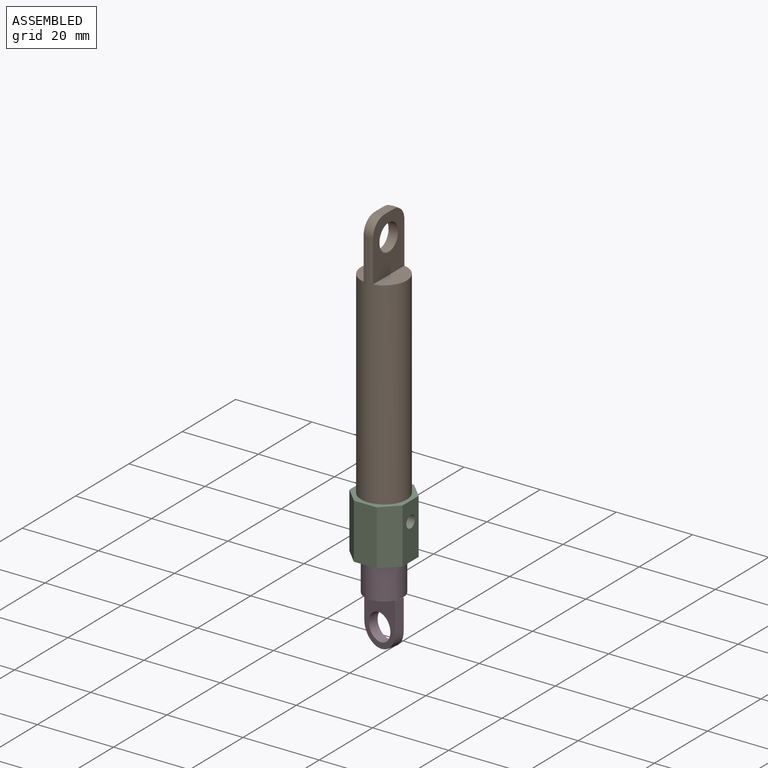
[diagram: assembled view]
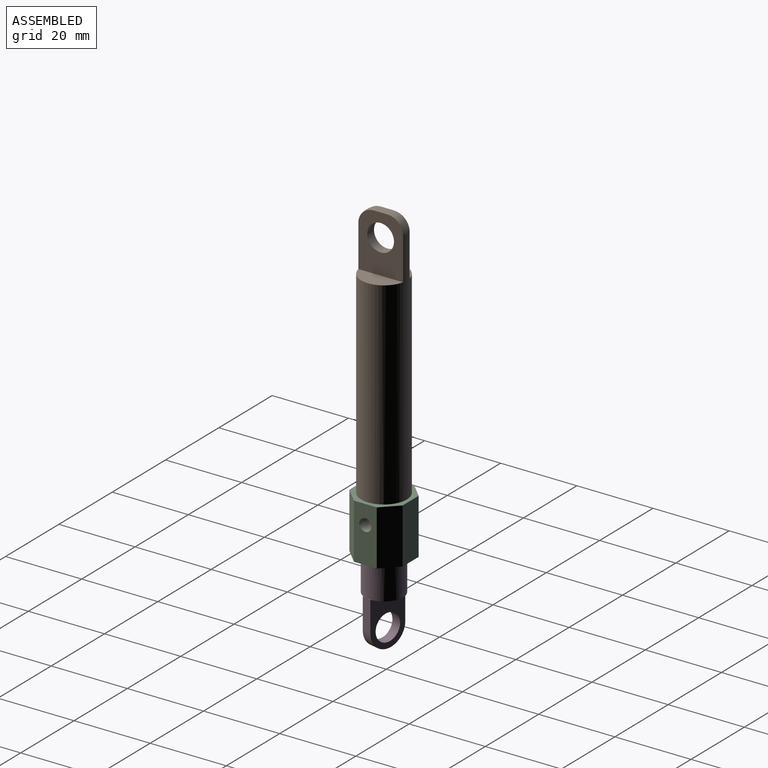
[diagram: assembled view, second angle]
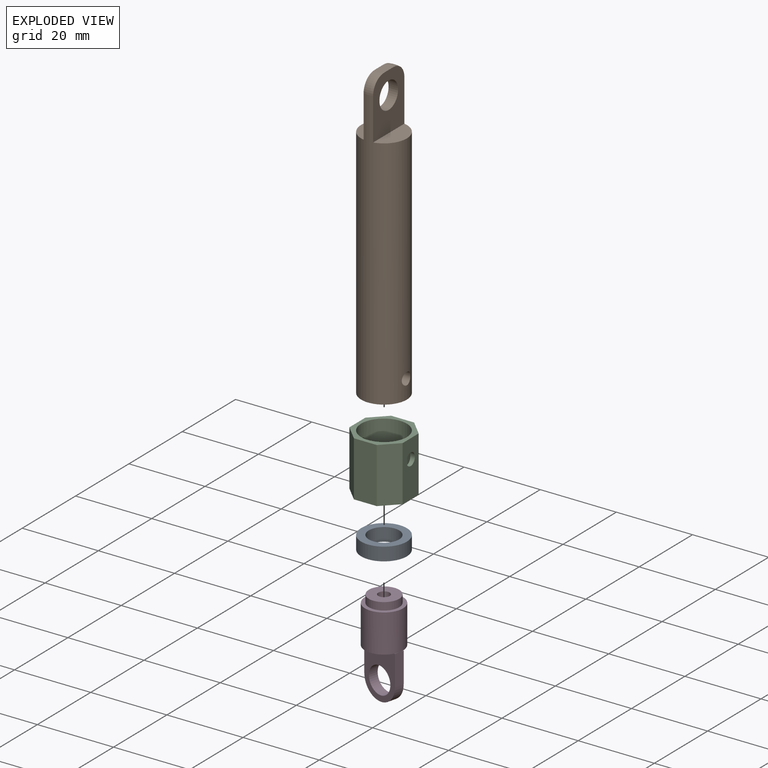
[diagram: exploded view]
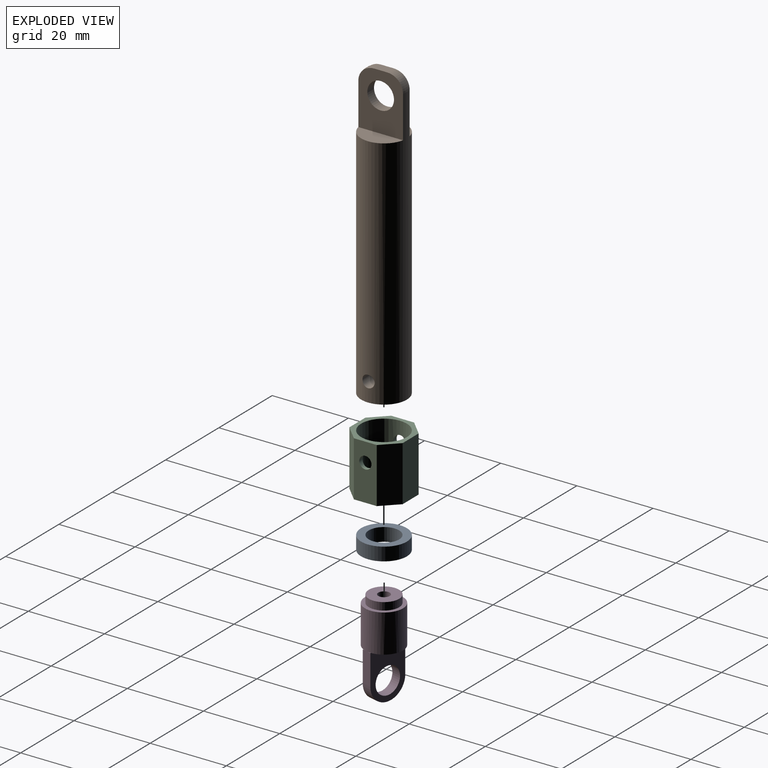
[diagram: exploded view, second angle]
ASSEMBLY  parts=4 mates=3
PART A: 4 faces, bbox 12x12x3.5 mm
  f0: cylinder r=4mm len=8mm, axis (0,0,-1), area 88mm2, adj f2,f3
  f1: cylinder r=6mm len=12mm, axis (0,0,-1), area 131.9mm2, adj f2,f3
  f2: plane 12x12mm, normal (0,0,1), area 62.8mm2, adj f0,f1
  f3: plane 12x12mm, normal (0,0,-1), area 62.8mm2, adj f0,f1
PART B: 16 faces, bbox 12x12x77 mm
  f0: cylinder r=6mm len=73mm, axis (0,0,1), area 2376.5mm2, adj f3,f7,f8,f9,f10,f11,f12,f13
  f1: plane 4x2.5mm, normal (0,0,1), area 9.3mm2, adj f10,f12,f13,f14
  f2: cylinder r=2mm len=50mm, axis (0,0,1), area 610.5mm2, adj f5,f6,f7,f8
  f3: plane 12x12mm, normal (0,0,-1), area 34.6mm2, adj f0,f4
  f4: cylinder r=5mm len=10mm, axis (0,0,1), area 62.8mm2, adj f3,f5
  f5: plane 10x10mm, normal (0,0,-1), area 66mm2, adj f2,f4
  f6: plane 4x4mm, normal (0,0,-1), area 12.6mm2, adj f2
  f7: cylinder r=1.6mm len=4.58mm, axis (-1,0,0), area 41.8mm2, adj f0,f2
  f8: cylinder r=1.6mm len=4.8mm, axis (-1,0,0), area 44mm2, adj f0,f2
  f9: plane 11.74x4.75mm, normal (0,0,1), area 41.7mm2, adj f0,f10
  f10: plane 15x11.74mm, normal (1,0,0), area 130.5mm2, adj f0,f1,f9,f13,f14,f15
  f11: plane 11.74x4.75mm, normal (0,0,1), area 41.7mm2, adj f0,f12
  f12: plane 15x11.74mm, normal (-1,0,0), area 130.5mm2, adj f0,f1,f11,f13,f14,f15
  f13: torus R=2mm, axis (0,0,1), area 16mm2, adj f0,f1,f10,f12
  f14: torus R=2mm, axis (0,0,1), area 16mm2, adj f0,f1,f10,f12
  f15: cylinder r=3.5mm len=7mm, axis (1,0,0), area 55mm2, adj f10,f12
PART C: 15 faces, bbox 14x14x14.5 mm
  f0: cylinder r=6mm len=13.5mm, axis (0,0,1), area 492.7mm2, adj f6,f8,f9,f10
  f1: plane 14.5x6mm, normal (1,0,0), area 79mm2, adj f5,f6,f9,f13,f14
  f2: plane 14.5x6mm, normal (0,-1,0), area 87mm2, adj f5,f6,f12,f14
  f3: plane 14.5x6mm, normal (-1,0,0), area 79mm2, adj f5,f6,f10,f11,f12
  f4: plane 14.5x6mm, normal (0,1,0), area 87mm2, adj f5,f6,f11,f13
  f5: plane 14x14mm, normal (0,0,-1), area 69mm2, adj f1,f2,f3,f4,f7,f11,f12,f13
  f6: plane 14x14mm, normal (0,0,1), area 50.9mm2, adj f0,f1,f2,f3,f4,f11,f12,f13
  f7: cylinder r=5.5mm len=11mm, axis (0,0,1), area 34.6mm2, adj f5,f8
  f8: plane 12x12mm, normal (0,0,1), area 18.1mm2, adj f0,f7
  f9: cylinder r=1.6mm len=3.2mm, axis (-1,0,0), area 11.1mm2, adj f0,f1
  f10: cylinder r=1.6mm len=3.2mm, axis (-1,0,0), area 11.1mm2, adj f0,f3
  f11: plane 14.5x4mm, normal (-0.71,0.71,0), area 82mm2, adj f3,f4,f5,f6
  f12: plane 14.5x4mm, normal (-0.71,-0.71,0), area 82mm2, adj f2,f3,f5,f6
  f13: plane 14.5x4mm, normal (0.71,0.71,0), area 82mm2, adj f1,f4,f5,f6
  f14: plane 14.5x4mm, normal (0.71,-0.71,0), area 82mm2, adj f1,f2,f5,f6
PART D: 18 faces, bbox 10x10x25 mm
  f0: plane 9.68x3.75mm, normal (0,0,1), area 26.9mm2, adj f4,f16
  f1: cylinder r=1.5mm len=8mm, axis (0,0,1), area 75.4mm2, adj f2,f7
  f2: plane 3x3mm, normal (0,0,-1), area 7.1mm2, adj f1
  f3: plane 9.68x3.75mm, normal (0,0,1), area 26.9mm2, adj f4,f17
  f4: cylinder r=5mm len=10mm, axis (0,0,1), area 314.2mm2, adj f0,f3,f5,f8,f9,f10,f11
  f5: plane 10x10mm, normal (0,0,-1), area 28.3mm2, adj f4,f6
  f6: cylinder r=4mm len=8mm, axis (0,0,1), area 50.3mm2, adj f5,f7
  f7: plane 8x8mm, normal (0,0,-1), area 43.2mm2, adj f1,f6
  f8: plane 1.25x0.16mm, normal (0,0,-1), area 0.1mm2, adj f4,f14,f17
  f9: plane 1.25x0.16mm, normal (0,0,-1), area 0.1mm2, adj f4,f14,f16
  f10: plane 1.25x0.16mm, normal (0,0,-1), area 0.1mm2, adj f4,f12,f17
  f11: plane 1.25x0.16mm, normal (0,0,-1), area 0.1mm2, adj f4,f12,f16
  f12: plane 8x2.5mm, normal (1,0,0), area 20mm2, adj f10,f11,f13,f16,f17
  f13: cylinder r=5mm len=10mm, axis (0,1,0), area 39.3mm2, adj f12,f14,f16,f17
  f14: plane 8x2.5mm, normal (-1,0,0), area 20mm2, adj f8,f9,f13,f16,f17
  f15: cylinder r=3.5mm len=7mm, axis (0,1,0), area 55mm2, adj f16,f17
  f16: plane 13x10mm, normal (0,-1,0), area 80.8mm2, adj f0,f9,f11,f12,f13,f14,f15
  f17: plane 13x10mm, normal (0,1,0), area 80.8mm2, adj f3,f8,f10,f12,f13,f14,f15
PLACE A t=(0,-83.95,12.5)mm
PLACE B t=(-24.27,-49.59,55.5)mm fixed
PLACE C t=(-24.27,-49.59,55.5)mm
PLACE D rot(axis=(0.12,0.99,0),180deg) t=(-24.27,-49.59,14.5)mm
MATE revolute A.f0 <-> D.f1  axis (0,0,-1) through (-24.27,-49.59,12.5)mm
MATE fastened B.f0 <-> A.f0  axis (0,0,-1) through (-24.27,-49.59,16)mm
MATE fastened C.f0 <-> A.f0  axis (0,0,1) through (-24.27,-49.59,12.5)mm
